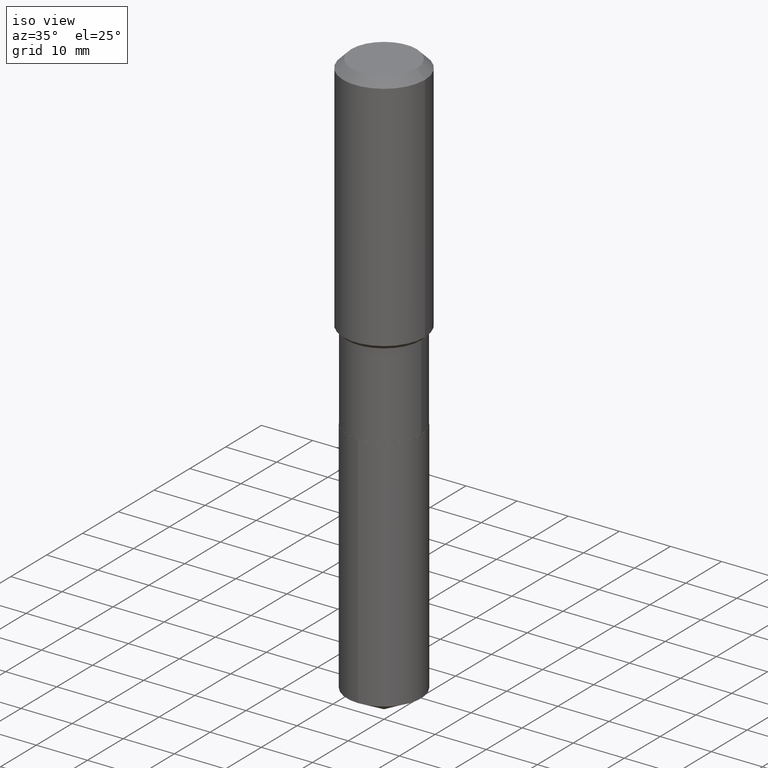
[diagram: clean part render]
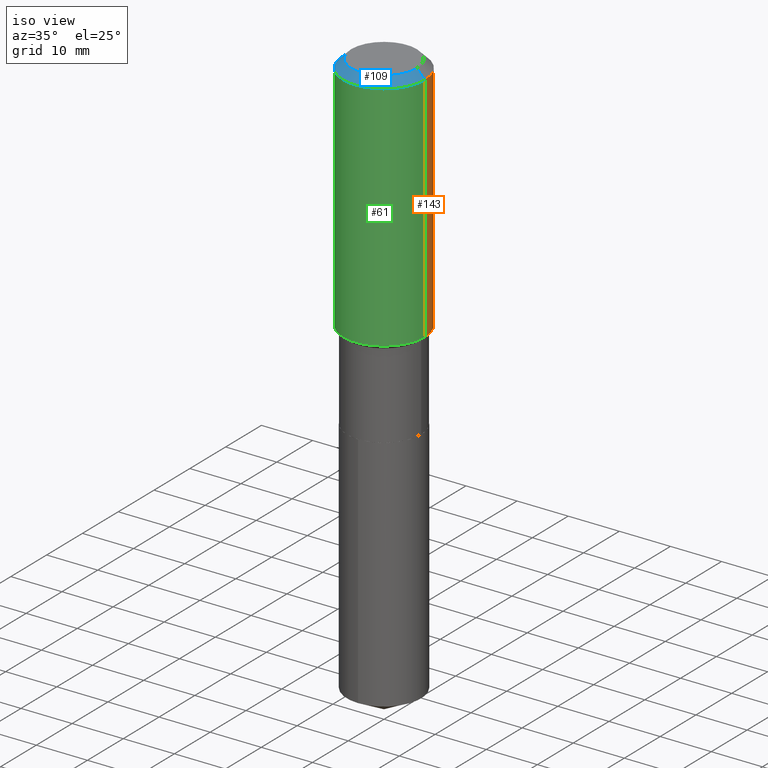
[diagram: same view with three faces highlighted in distinct colors, each labeled with its STEP entity id]
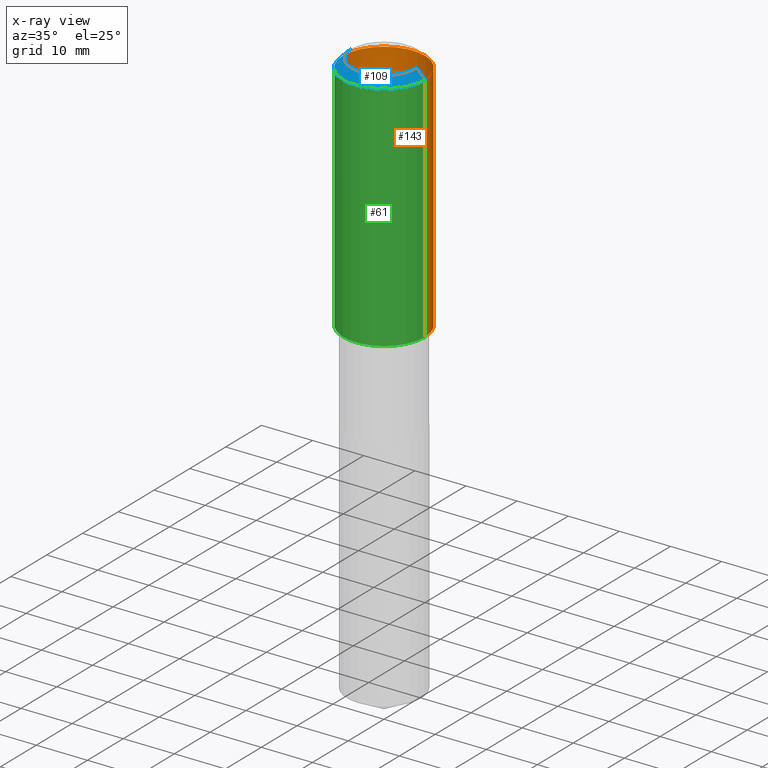
[diagram: x-ray of the same camera — body ghosted, the three highlighted faces saturated]
A machine part, iso view with three faces highlighted in distinct colors.
The next image is the same camera in x-ray (body ghosted, the three faces saturated) — at least one of them is partly hidden behind the body in this view.
Their STEP definitions:

[orange] entity #143 — the highlighted cylindrical surface (partial cylindrical patch) has radius 7.9997 mm, axis along (-0, 0, 1).
#13 = VECTOR ( 'NONE', #253, 39.37007874015748143 ) ;
#18 = LINE ( 'NONE', #294, #324 ) ;
#36 = DIRECTION ( 'NONE',  ( -2.445468806185136597E-29, 3.491481338843145583E-15, 1.000000000000000000 ) ) ;
#57 = CARTESIAN_POINT ( 'NONE',  ( 0.3149500000000002298, -8.670395608749174891E-15, -1.853399999999999492 ) ) ;
#58 = EDGE_CURVE ( 'NONE', #123, #110, #445, .T. ) ;
#77 = AXIS2_PLACEMENT_3D ( 'NONE', #382, #36, #192 ) ;
#82 = EDGE_LOOP ( 'NONE', ( #392, #355, #173, #138 ) ) ;
#83 = DIRECTION ( 'NONE',  ( -2.445468806185136877E-29, 3.491481338843145188E-15, 1.000000000000000000 ) ) ;
#94 = DIRECTION ( 'NONE',  ( 1.000000000000000000, -6.982962677686266711E-15, 0.000000000000000000 ) ) ;
#96 = CARTESIAN_POINT ( 'NONE',  ( -0.3149500000000001743, 2.237854346276436774E-15, -1.549218606675783237E-29 ) ) ;
#99 = CARTESIAN_POINT ( 'NONE',  ( -0.3149500000000000077, -1.107665615196370664E-15, -0.06299000000000037902 ) ) ;
#107 = CARTESIAN_POINT ( 'NONE',  ( 4.532431885383530839E-29, -6.471111513411883442E-15, -1.853399999999999492 ) ) ;
#110 = VERTEX_POINT ( 'NONE', #99 ) ;
#123 = VERTEX_POINT ( 'NONE', #416 ) ;
#138 = ORIENTED_EDGE ( 'NONE', *, *, #393, .F. ) ;
#143 = ADVANCED_FACE ( 'NONE', ( #234 ), #146, .T. ) ;
#146 = CYLINDRICAL_SURFACE ( 'NONE', #77, 0.3149500000000001743 ) ;
#171 = CARTESIAN_POINT ( 'NONE',  ( 1.540400801016026505E-30, -2.199284095337310628E-16, -0.06299000000000037902 ) ) ;
#173 = ORIENTED_EDGE ( 'NONE', *, *, #472, .F. ) ;
#180 = AXIS2_PLACEMENT_3D ( 'NONE', #107, #405, #260 ) ;
#192 = DIRECTION ( 'NONE',  ( 1.000000000000000000, -6.982962677686265922E-15, 4.876176775795935232E-29 ) ) ;
#218 = CIRCLE ( 'NONE', #299, 0.3149500000000000077 ) ;
#224 = VERTEX_POINT ( 'NONE', #57 ) ;
#234 = FACE_OUTER_BOUND ( 'NONE', #82, .T. ) ;
#253 = DIRECTION ( 'NONE',  ( -2.445468806185136877E-29, 3.491481338843145188E-15, 1.000000000000000000 ) ) ;
#259 = EDGE_CURVE ( 'NONE', #224, #123, #453, .T. ) ;
#260 = DIRECTION ( 'NONE',  ( 1.000000000000000000, -6.982962677686268288E-15, 0.000000000000000000 ) ) ;
#294 = CARTESIAN_POINT ( 'NONE',  ( 0.3149500000000001743, -2.199284095337290660E-15, 1.535751875536930690E-29 ) ) ;
#299 = AXIS2_PLACEMENT_3D ( 'NONE', #171, #320, #94 ) ;
#309 = VERTEX_POINT ( 'NONE', #410 ) ;
#320 = DIRECTION ( 'NONE',  ( -2.445468806185136597E-29, 3.491481338843145583E-15, 1.000000000000000000 ) ) ;
#324 = VECTOR ( 'NONE', #83, 39.37007874015748143 ) ;
#355 = ORIENTED_EDGE ( 'NONE', *, *, #58, .T. ) ;
#382 = CARTESIAN_POINT ( 'NONE',  ( 0.000000000000000000, 0.000000000000000000, 0.000000000000000000 ) ) ;
#392 = ORIENTED_EDGE ( 'NONE', *, *, #259, .T. ) ;
#393 = EDGE_CURVE ( 'NONE', #224, #309, #18, .T. ) ;
#405 = DIRECTION ( 'NONE',  ( -2.445468806185136597E-29, 3.491481338843145583E-15, 1.000000000000000000 ) ) ;
#410 = CARTESIAN_POINT ( 'NONE',  ( 0.3149500000000000077, -2.419212504871020909E-15, -0.06299000000000037902 ) ) ;
#416 = CARTESIAN_POINT ( 'NONE',  ( -0.3149500000000002298, -4.233257167135447457E-15, -1.853399999999999492 ) ) ;
#445 = LINE ( 'NONE', #96, #13 ) ;
#453 = CIRCLE ( 'NONE', #180, 0.3149500000000002298 ) ;
#472 = EDGE_CURVE ( 'NONE', #309, #110, #218, .T. ) ;

[blue] entity #109 — the highlighted conical surface has half-angle 45 deg.
#15 = DIRECTION ( 'NONE',  ( 1.000000000000000000, -6.982962677686266711E-15, 4.876115136096691995E-29 ) ) ;
#17 = EDGE_CURVE ( 'NONE', #110, #309, #278, .T. ) ;
#22 = CARTESIAN_POINT ( 'NONE',  ( -0.2519600000000000173, 1.869391481036695286E-15, 3.855188123703182704E-18 ) ) ;
#28 = DIRECTION ( 'NONE',  ( 0.7071067811865453523, -7.319954787623248157E-15, -0.7071067811865496822 ) ) ;
#39 = VECTOR ( 'NONE', #65, 39.37007874015748143 ) ;
#40 = EDGE_LOOP ( 'NONE', ( #423, #46, #485, #296 ) ) ;
#46 = ORIENTED_EDGE ( 'NONE', *, *, #420, .F. ) ;
#59 = DIRECTION ( 'NONE',  ( -1.000000000000000000, 6.982962677686266711E-15, 0.000000000000000000 ) ) ;
#65 = DIRECTION ( 'NONE',  ( -0.7071067811865453523, 2.468850131082234184E-15, -0.7071067811865496822 ) ) ;
#99 = CARTESIAN_POINT ( 'NONE',  ( -0.3149500000000000077, -1.107665615196370664E-15, -0.06299000000000037902 ) ) ;
#103 = CARTESIAN_POINT ( 'NONE',  ( 0.2519600000000000173, -2.054606664725195058E-15, 3.855188123729206640E-18 ) ) ;
#109 = ADVANCED_FACE ( 'NONE', ( #213 ), #255, .T. ) ;
#110 = VERTEX_POINT ( 'NONE', #99 ) ;
#134 = LINE ( 'NONE', #136, #367 ) ;
#136 = CARTESIAN_POINT ( 'NONE',  ( 0.3149500000000000077, -2.380642253931875190E-15, -0.06299000000000037902 ) ) ;
#158 = EDGE_CURVE ( 'NONE', #280, #110, #456, .T. ) ;
#164 = AXIS2_PLACEMENT_3D ( 'NONE', #291, #369, #59 ) ;
#213 = FACE_OUTER_BOUND ( 'NONE', #40, .T. ) ;
#246 = DIRECTION ( 'NONE',  ( -2.445468806185136597E-29, 3.491481338843145583E-15, 1.000000000000000000 ) ) ;
#255 = CONICAL_SURFACE ( 'NONE', #164, 0.3149500000000000077, 0.7853981633974452814 ) ;
#270 = VERTEX_POINT ( 'NONE', #103 ) ;
#278 = CIRCLE ( 'NONE', #473, 0.3149500000000000077 ) ;
#280 = VERTEX_POINT ( 'NONE', #22 ) ;
#291 = CARTESIAN_POINT ( 'NONE',  ( 1.540400801016026505E-30, -2.199284095337310628E-16, -0.06299000000000037902 ) ) ;
#296 = ORIENTED_EDGE ( 'NONE', *, *, #17, .T. ) ;
#297 = CARTESIAN_POINT ( 'NONE',  ( -0.3149500000000000077, 1.979355685803558833E-15, -0.06299000000000037902 ) ) ;
#308 = EDGE_CURVE ( 'NONE', #270, #309, #134, .T. ) ;
#309 = VERTEX_POINT ( 'NONE', #410 ) ;
#312 = DIRECTION ( 'NONE',  ( -2.445468806185136597E-29, 3.491481338843145583E-15, 1.000000000000000000 ) ) ;
#366 = CARTESIAN_POINT ( 'NONE',  ( -9.427742298522569579E-47, 1.346031739168368629E-32, 3.855188123715871501E-18 ) ) ;
#367 = VECTOR ( 'NONE', #28, 39.37007874015748143 ) ;
#369 = DIRECTION ( 'NONE',  ( 2.445468806185136597E-29, -3.491481338843145583E-15, -1.000000000000000000 ) ) ;
#374 = AXIS2_PLACEMENT_3D ( 'NONE', #366, #312, #15 ) ;
#394 = CARTESIAN_POINT ( 'NONE',  ( 1.540400801016026505E-30, -2.199284095337310628E-16, -0.06299000000000037902 ) ) ;
#410 = CARTESIAN_POINT ( 'NONE',  ( 0.3149500000000000077, -2.419212504871020909E-15, -0.06299000000000037902 ) ) ;
#420 = EDGE_CURVE ( 'NONE', #280, #270, #438, .T. ) ;
#423 = ORIENTED_EDGE ( 'NONE', *, *, #308, .F. ) ;
#438 = CIRCLE ( 'NONE', #374, 0.2519600000000000173 ) ;
#456 = LINE ( 'NONE', #297, #39 ) ;
#471 = DIRECTION ( 'NONE',  ( 1.000000000000000000, -6.982962677686266711E-15, 0.000000000000000000 ) ) ;
#473 = AXIS2_PLACEMENT_3D ( 'NONE', #394, #246, #471 ) ;
#485 = ORIENTED_EDGE ( 'NONE', *, *, #158, .T. ) ;

[green] entity #61 — the highlighted cylindrical surface (partial cylindrical patch) has radius 7.9997 mm, axis along (-0, 0, 1).
#8 = ORIENTED_EDGE ( 'NONE', *, *, #330, .T. ) ;
#13 = VECTOR ( 'NONE', #253, 39.37007874015748143 ) ;
#17 = EDGE_CURVE ( 'NONE', #110, #309, #278, .T. ) ;
#18 = LINE ( 'NONE', #294, #324 ) ;
#31 = DIRECTION ( 'NONE',  ( 1.000000000000000000, -6.982962677686265922E-15, 4.876176775795935232E-29 ) ) ;
#57 = CARTESIAN_POINT ( 'NONE',  ( 0.3149500000000002298, -8.670395608749174891E-15, -1.853399999999999492 ) ) ;
#58 = EDGE_CURVE ( 'NONE', #123, #110, #445, .T. ) ;
#61 = ADVANCED_FACE ( 'NONE', ( #113 ), #409, .T. ) ;
#71 = AXIS2_PLACEMENT_3D ( 'NONE', #237, #421, #273 ) ;
#83 = DIRECTION ( 'NONE',  ( -2.445468806185136877E-29, 3.491481338843145188E-15, 1.000000000000000000 ) ) ;
#96 = CARTESIAN_POINT ( 'NONE',  ( -0.3149500000000001743, 2.237854346276436774E-15, -1.549218606675783237E-29 ) ) ;
#97 = CIRCLE ( 'NONE', #71, 0.3149500000000002298 ) ;
#99 = CARTESIAN_POINT ( 'NONE',  ( -0.3149500000000000077, -1.107665615196370664E-15, -0.06299000000000037902 ) ) ;
#110 = VERTEX_POINT ( 'NONE', #99 ) ;
#113 = FACE_OUTER_BOUND ( 'NONE', #464, .T. ) ;
#123 = VERTEX_POINT ( 'NONE', #416 ) ;
#141 = DIRECTION ( 'NONE',  ( -2.445468806185136597E-29, 3.491481338843145583E-15, 1.000000000000000000 ) ) ;
#224 = VERTEX_POINT ( 'NONE', #57 ) ;
#236 = ORIENTED_EDGE ( 'NONE', *, *, #58, .F. ) ;
#237 = CARTESIAN_POINT ( 'NONE',  ( 4.532431885383530839E-29, -6.471111513411883442E-15, -1.853399999999999492 ) ) ;
#246 = DIRECTION ( 'NONE',  ( -2.445468806185136597E-29, 3.491481338843145583E-15, 1.000000000000000000 ) ) ;
#253 = DIRECTION ( 'NONE',  ( -2.445468806185136877E-29, 3.491481338843145188E-15, 1.000000000000000000 ) ) ;
#273 = DIRECTION ( 'NONE',  ( 1.000000000000000000, -6.982962677686268288E-15, 0.000000000000000000 ) ) ;
#278 = CIRCLE ( 'NONE', #473, 0.3149500000000000077 ) ;
#294 = CARTESIAN_POINT ( 'NONE',  ( 0.3149500000000001743, -2.199284095337290660E-15, 1.535751875536930690E-29 ) ) ;
#309 = VERTEX_POINT ( 'NONE', #410 ) ;
#324 = VECTOR ( 'NONE', #83, 39.37007874015748143 ) ;
#330 = EDGE_CURVE ( 'NONE', #123, #224, #97, .T. ) ;
#339 = AXIS2_PLACEMENT_3D ( 'NONE', #487, #141, #31 ) ;
#378 = ORIENTED_EDGE ( 'NONE', *, *, #17, .F. ) ;
#393 = EDGE_CURVE ( 'NONE', #224, #309, #18, .T. ) ;
#394 = CARTESIAN_POINT ( 'NONE',  ( 1.540400801016026505E-30, -2.199284095337310628E-16, -0.06299000000000037902 ) ) ;
#409 = CYLINDRICAL_SURFACE ( 'NONE', #339, 0.3149500000000001743 ) ;
#410 = CARTESIAN_POINT ( 'NONE',  ( 0.3149500000000000077, -2.419212504871020909E-15, -0.06299000000000037902 ) ) ;
#416 = CARTESIAN_POINT ( 'NONE',  ( -0.3149500000000002298, -4.233257167135447457E-15, -1.853399999999999492 ) ) ;
#419 = ORIENTED_EDGE ( 'NONE', *, *, #393, .T. ) ;
#421 = DIRECTION ( 'NONE',  ( -2.445468806185136597E-29, 3.491481338843145583E-15, 1.000000000000000000 ) ) ;
#445 = LINE ( 'NONE', #96, #13 ) ;
#464 = EDGE_LOOP ( 'NONE', ( #236, #8, #419, #378 ) ) ;
#471 = DIRECTION ( 'NONE',  ( 1.000000000000000000, -6.982962677686266711E-15, 0.000000000000000000 ) ) ;
#473 = AXIS2_PLACEMENT_3D ( 'NONE', #394, #246, #471 ) ;
#487 = CARTESIAN_POINT ( 'NONE',  ( 0.000000000000000000, 0.000000000000000000, 0.000000000000000000 ) ) ;